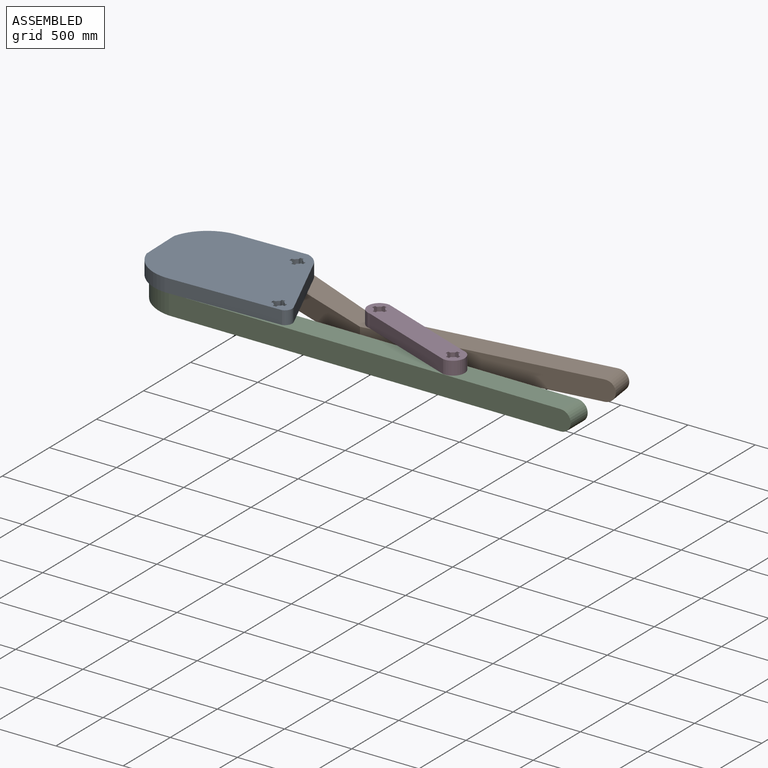
[diagram: assembled view]
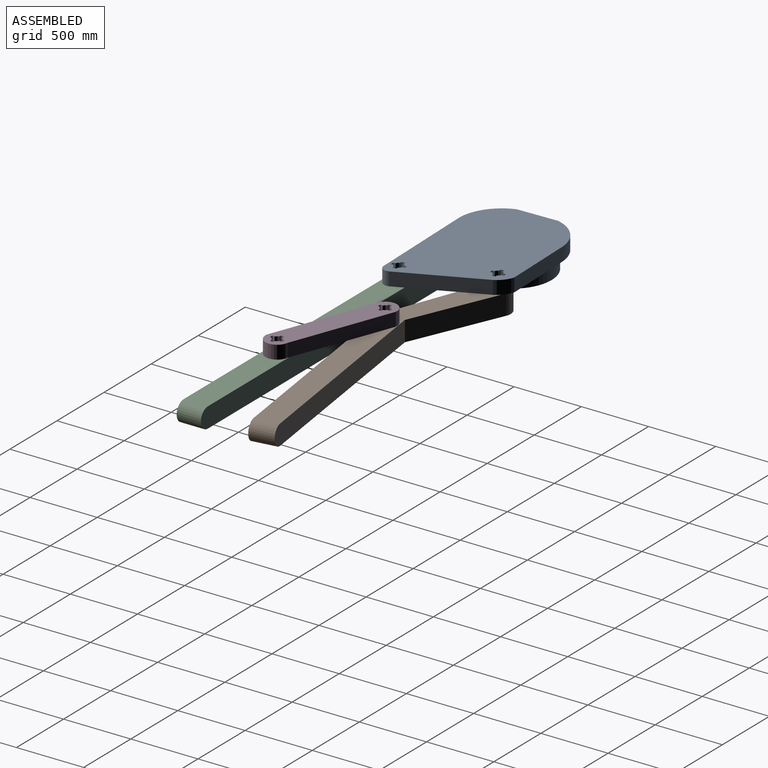
[diagram: assembled view, second angle]
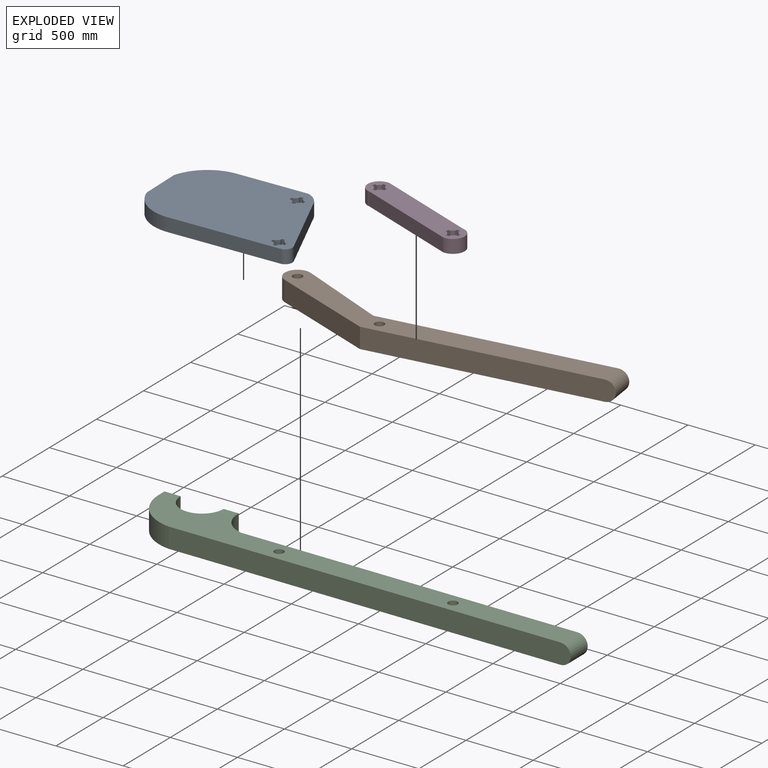
[diagram: exploded view]
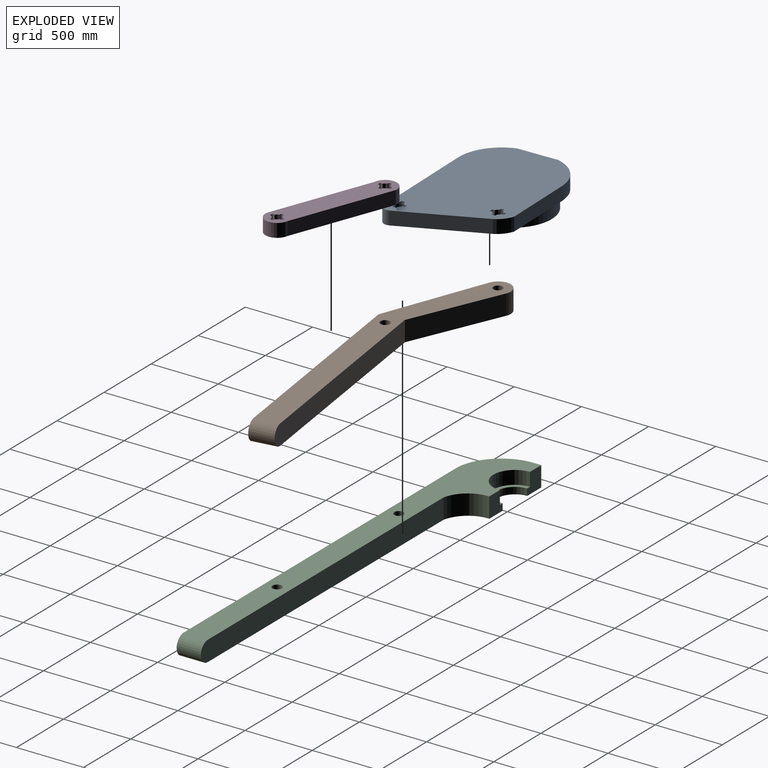
[diagram: exploded view, second angle]
ASSEMBLY  parts=4 mates=4
PART A: 49 faces, bbox 1179.6x756.4x250 mm
  f0: plane 1179.57x756.43mm, normal (0,0,-1), area 653343mm2, adj f1,f2,f3,f4,f5,f6,f7,f8
  f1: cylinder r=35mm len=100mm, axis (0,0,-1), area 2913.5mm2, adj f0,f2,f40,f41
  f2: plane 100x17.06mm, normal (-1,0,0), area 1705.5mm2, adj f0,f1,f3,f41
  f3: plane 100x24.84mm, normal (0,1,0), area 2484.4mm2, adj f0,f2,f4,f41
  f4: plane 100x17.06mm, normal (1,0,0), area 1705.5mm2, adj f0,f3,f5,f41
  f5: cylinder r=35mm len=100mm, axis (0,0,-1), area 2913.5mm2, adj f0,f4,f6,f41
  f6: plane 100x17.6mm, normal (0,1,0), area 1759.7mm2, adj f0,f5,f7,f41
  f7: plane 100x25.67mm, normal (1,0,0), area 2567.4mm2, adj f0,f6,f8,f41
  f8: plane 100x17.6mm, normal (0,-1,0), area 1759.7mm2, adj f0,f7,f9,f41
  f9: cylinder r=35mm len=100mm, axis (0,0,-1), area 2913.5mm2, adj f0,f8,f10,f41
  f10: plane 100x17.06mm, normal (1,0,0), area 1705.5mm2, adj f0,f9,f11,f41
  f11: plane 100x24.84mm, normal (0,-1,0), area 2484.4mm2, adj f0,f10,f12,f41
  f12: plane 100x17.06mm, normal (-1,0,0), area 1705.5mm2, adj f0,f11,f13,f41
  f13: cylinder r=35mm len=100mm, axis (0,0,-1), area 2913.5mm2, adj f0,f12,f14,f41
  f14: plane 100x17.6mm, normal (0,-1,0), area 1759.7mm2, adj f0,f13,f15,f41
  f15: plane 100x25.67mm, normal (-1,0,0), area 2567.4mm2, adj f0,f14,f40,f41
  f16: plane 100x17.78mm, normal (-1,0,0), area 1777.9mm2, adj f0,f17,f38,f41
  f17: cylinder r=35mm len=100mm, axis (0,0,-1), area 2864mm2, adj f0,f16,f18,f41
  f18: plane 100x17.72mm, normal (0,-1,0), area 1771.9mm2, adj f0,f17,f19,f41
  f19: plane 100x25.82mm, normal (-1,0,0), area 2581.9mm2, adj f0,f18,f20,f41
  f20: plane 100x17.72mm, normal (0,1,0), area 1771.9mm2, adj f0,f19,f21,f41
  f21: cylinder r=35mm len=100mm, axis (0,0,-1), area 2864mm2, adj f0,f20,f22,f41
  f22: plane 100x17.78mm, normal (-1,0,0), area 1777.9mm2, adj f0,f21,f23,f41
  f23: plane 100x25.62mm, normal (0,1,0), area 2562.3mm2, adj f0,f22,f24,f41
  f24: plane 100x17.78mm, normal (1,0,0), area 1777.9mm2, adj f0,f23,f25,f41
  f25: cylinder r=35mm len=100mm, axis (0,0,-1), area 2864mm2, adj f0,f24,f26,f41
  f26: plane 100x17.72mm, normal (0,1,0), area 1771.9mm2, adj f0,f25,f27,f41
  f27: plane 100x25.82mm, normal (1,0,0), area 2581.9mm2, adj f0,f26,f28,f41
  f28: plane 100x17.72mm, normal (0,-1,0), area 1771.9mm2, adj f0,f27,f29,f41
  f29: cylinder r=35mm len=100mm, axis (0,0,-1), area 2864mm2, adj f0,f28,f30,f41
  f30: plane 100x17.78mm, normal (1,0,0), area 1777.9mm2, adj f0,f29,f38,f41
  f31: cylinder r=320mm len=296.91mm, axis (0,0,-1), area 39890.2mm2, adj f0,f32,f39,f41
  f32: plane 302.86x250mm, normal (-1,0,0), area 40710.5mm2, adj f0,f31,f33,f41,f43,f44,f46
  f33: cylinder r=320mm len=315.38mm, axis (0,0,-1), area 41737.2mm2, adj f0,f32,f34,f41
  f34: plane 824.02x100mm, normal (0,-1,0), area 82401.9mm2, adj f0,f33,f35,f41
  f35: cylinder r=55.24mm len=100mm, axis (0,0,-1), area 9208.7mm2, adj f0,f34,f36,f41
  f36: plane 594.54x245.89mm, normal (0.92,0.38,0), area 64338.1mm2, adj f0,f35,f37,f41
  f37: cylinder r=175.31mm len=100mm, axis (0,0,-1), area 13693.2mm2, adj f0,f36,f39,f41
  f38: plane 100x25.62mm, normal (0,-1,0), area 2562.3mm2, adj f0,f16,f30,f41
  f39: plane 533.07x100mm, normal (0,1,0), area 53306.9mm2, adj f0,f31,f37,f41
  f40: plane 100x17.6mm, normal (0,1,0), area 1759.7mm2, adj f0,f1,f15,f41
  f41: plane 1179.57x756.43mm, normal (0,0,1), area 743163.7mm2, adj f1,f2,f3,f4,f5,f6,f7,f8
  f42: plane 158.16x150mm, normal (0,-1,0), area 20723.2mm2, adj f0,f43,f45,f46,f47,f48
  f43: cylinder r=288.15mm len=567.8mm, axis (0,0,1), area 125261.9mm2, adj f0,f32,f42,f46
  f44: plane 150x149.65mm, normal (0,-1,0), area 19447.4mm2, adj f0,f32,f45,f46,f47,f48
  f45: cylinder r=130mm len=260mm, axis (0,0,1), area 20420.4mm2, adj f42,f44,f46,f48
  f46: plane 567.8x288.16mm, normal (0,0,-1), area 103486.6mm2, adj f32,f42,f43,f44,f45
  f47: cylinder r=160mm len=320mm, axis (0,0,1), area 50265.5mm2, adj f0,f42,f44,f48
  f48: plane 320x160mm, normal (0,0,1), area 13665.9mm2, adj f42,f44,f45,f47
PART B: 10 faces, bbox 2513.5x570.3x150 mm
  f0: plane 1750x150mm, normal (0,-1,0), area 260085.7mm2, adj f6,f7,f8,f9
  f1: plane 1750x150mm, normal (0,1,0), area 260085.8mm2, adj f2,f7,f8,f9
  f2: plane 620.5x377.16mm, normal (0.52,0.85,0), area 108919.2mm2, adj f1,f3,f7,f8
  f3: cylinder r=94.09mm len=174.5mm, axis (0,0,-1), area 44340.7mm2, adj f2,f6,f7,f8
  f4: cylinder r=35mm len=150mm, axis (0,0,-1), area 32986.7mm2, adj f7,f8
  f5: cylinder r=35mm len=150mm, axis (0,0,-1), area 32986.7mm2, adj f7,f8
  f6: plane 718.24x395.84mm, normal (-0.48,-0.88,0), area 123014.9mm2, adj f0,f3,f7,f8
  f7: plane 2438.46x570.34mm, normal (0,0,1), area 440219.2mm2, adj f0,f1,f2,f3,f4,f5,f6,f9
  f8: plane 2438.46x570.34mm, normal (0,0,-1), area 440219.2mm2, adj f0,f1,f2,f3,f4,f5,f6,f9
  f9: cylinder r=75mm len=180.2mm, axis (0,-1,0), area 42456.2mm2, adj f0,f1,f7,f8
PART C: 16 faces, bbox 3301.9x400x150 mm
  f0: plane 2990.04x150mm, normal (0,-1,0), area 446091.4mm2, adj f9,f11,f12,f15
  f1: plane 2578.1x150mm, normal (0,1,0), area 384300.6mm2, adj f2,f11,f12,f15
  f2: cylinder r=215.68mm len=202.46mm, axis (0,0,-1), area 42917.2mm2, adj f1,f3,f11,f12
  f3: plane 150x17.54mm, normal (1,0,0), area 2631.3mm2, adj f2,f4,f11,f12
  f4: plane 150x142.37mm, normal (0,1,0), area 18355.3mm2, adj f3,f5,f11,f12,f13,f14
  f5: cylinder r=160mm len=320mm, axis (0,0,-1), area 50265.5mm2, adj f4,f6,f11,f14
  f6: plane 150x149.54mm, normal (0,1,0), area 19431mm2, adj f5,f7,f11,f12,f13,f14
  f7: plane 150x77.02mm, normal (-1,0,0), area 11553.1mm2, adj f6,f9,f11,f12
  f8: cylinder r=35mm len=150mm, axis (0,0,-1), area 32986.7mm2, adj f11,f12
  f9: cylinder r=347.34mm len=322.98mm, axis (0,0,-1), area 73226mm2, adj f0,f7,f11,f12
  f10: cylinder r=35mm len=150mm, axis (0,0,-1), area 32986.7mm2, adj f11,f12
  f11: plane 3226.91x400mm, normal (0,0,1), area 638386.8mm2, adj f0,f1,f2,f3,f4,f5,f6,f7
  f12: plane 3226.91x400mm, normal (0,0,-1), area 652052.7mm2, adj f0,f1,f2,f3,f4,f6,f7,f8
  f13: cylinder r=130mm len=260mm, axis (0,0,-1), area 20420.4mm2, adj f4,f6,f12,f14
  f14: plane 320x160mm, normal (0,0,1), area 13665.9mm2, adj f4,f5,f6,f13
  f15: cylinder r=75mm len=180mm, axis (0,-1,0), area 42411.5mm2, adj f0,f1,f11,f12
PART D: 38 faces, bbox 950.1x355.1x100 mm
  f0: cylinder r=87.5mm len=175mm, axis (0,0,-1), area 27488.9mm2, adj f1,f35,f36,f37
  f1: plane 775.06x180.08mm, normal (-0.23,-0.97,0), area 79570.2mm2, adj f0,f2,f36,f37
  f2: cylinder r=87.5mm len=175mm, axis (0,0,-1), area 27488.9mm2, adj f1,f35,f36,f37
  f3: plane 100x17.31mm, normal (0,-1,0), area 1730.8mm2, adj f4,f33,f36,f37
  f4: cylinder r=35mm len=100mm, axis (0,0,-1), area 2941.3mm2, adj f3,f5,f36,f37
  f5: plane 100x17.31mm, normal (1,0,0), area 1730.8mm2, adj f4,f6,f36,f37
  f6: plane 100x25mm, normal (0,-1,0), area 2500mm2, adj f5,f7,f36,f37
  f7: plane 100x17.31mm, normal (-1,0,0), area 1730.8mm2, adj f6,f8,f36,f37
  f8: cylinder r=35mm len=100mm, axis (0,0,-1), area 2941.3mm2, adj f7,f9,f36,f37
  f9: plane 100x17.31mm, normal (0,-1,0), area 1730.8mm2, adj f8,f10,f36,f37
  f10: plane 100x25mm, normal (-1,0,0), area 2500mm2, adj f9,f11,f36,f37
  f11: plane 100x17.31mm, normal (0,1,0), area 1730.8mm2, adj f10,f12,f36,f37
  f12: cylinder r=35mm len=100mm, axis (0,0,-1), area 2941.3mm2, adj f11,f13,f36,f37
  f13: plane 100x17.31mm, normal (-1,0,0), area 1730.8mm2, adj f12,f14,f36,f37
  f14: plane 100x25mm, normal (0,1,0), area 2500mm2, adj f13,f15,f36,f37
  f15: plane 100x17.31mm, normal (1,0,0), area 1730.8mm2, adj f14,f16,f36,f37
  f16: cylinder r=35mm len=100mm, axis (0,0,-1), area 2941.3mm2, adj f15,f17,f36,f37
  f17: plane 100x17.31mm, normal (0,1,0), area 1730.8mm2, adj f16,f33,f36,f37
  f18: cylinder r=35mm len=100mm, axis (0,0,-1), area 2941.3mm2, adj f19,f34,f36,f37
  f19: plane 100x17.31mm, normal (-1,0,0), area 1730.8mm2, adj f18,f20,f36,f37
  f20: plane 100x25mm, normal (0,1,0), area 2500mm2, adj f19,f21,f36,f37
  f21: plane 100x17.31mm, normal (1,0,0), area 1730.8mm2, adj f20,f22,f36,f37
  f22: cylinder r=35mm len=100mm, axis (0,0,-1), area 2941.3mm2, adj f21,f23,f36,f37
  f23: plane 100x17.31mm, normal (0,1,0), area 1730.8mm2, adj f22,f24,f36,f37
  f24: plane 100x25mm, normal (1,0,0), area 2500mm2, adj f23,f25,f36,f37
  f25: plane 100x17.31mm, normal (0,-1,0), area 1730.8mm2, adj f24,f26,f36,f37
  f26: cylinder r=35mm len=100mm, axis (0,0,-1), area 2941.3mm2, adj f25,f27,f36,f37
  f27: plane 100x17.31mm, normal (1,0,0), area 1730.8mm2, adj f26,f28,f36,f37
  f28: plane 100x25mm, normal (0,-1,0), area 2500mm2, adj f27,f29,f36,f37
  f29: plane 100x17.31mm, normal (-1,0,0), area 1730.8mm2, adj f28,f30,f36,f37
  f30: cylinder r=35mm len=100mm, axis (0,0,-1), area 2941.3mm2, adj f29,f31,f36,f37
  f31: plane 100x17.31mm, normal (0,-1,0), area 1730.8mm2, adj f30,f32,f36,f37
  f32: plane 100x25mm, normal (-1,0,0), area 2500mm2, adj f31,f34,f36,f37
  f33: plane 100x25mm, normal (1,0,0), area 2500mm2, adj f3,f17,f36,f37
  f34: plane 100x17.31mm, normal (0,1,0), area 1730.8mm2, adj f18,f32,f36,f37
  f35: plane 775.06x180.08mm, normal (0.23,0.97,0), area 79570.2mm2, adj f0,f2,f36,f37
  f36: plane 950.06x355.08mm, normal (0,0,1), area 148839mm2, adj f0,f1,f2,f3,f4,f5,f6,f7
  f37: plane 950.06x355.08mm, normal (0,0,-1), area 148839mm2, adj f0,f1,f2,f3,f4,f5,f6,f7
PLACE A rot(axis=(0,0,1),1.5deg) t=(-7.2,-20.35,0)mm
PLACE B rot(axis=(0,0,1),8deg) t=(29.99,-75.47,25)mm
PLACE C at identity fixed
PLACE D rot(axis=(0,0,-1),7.7deg) t=(56,272.61,0)mm
MATE revolute D.f2 <-> C.f10  axis (0,0,-1) through (2047.12,-278.23,150)mm
MATE revolute A.f1 <-> C.f8  axis (0,0,-1) through (753.55,-278.23,150)mm
MATE revolute A.f17 <-> B.f3  axis (0,0,-1) through (499.47,281.4,150)mm
MATE revolute D.f0 <-> B.f4  axis (0,0,-1) through (1303.31,4.4,150)mm
